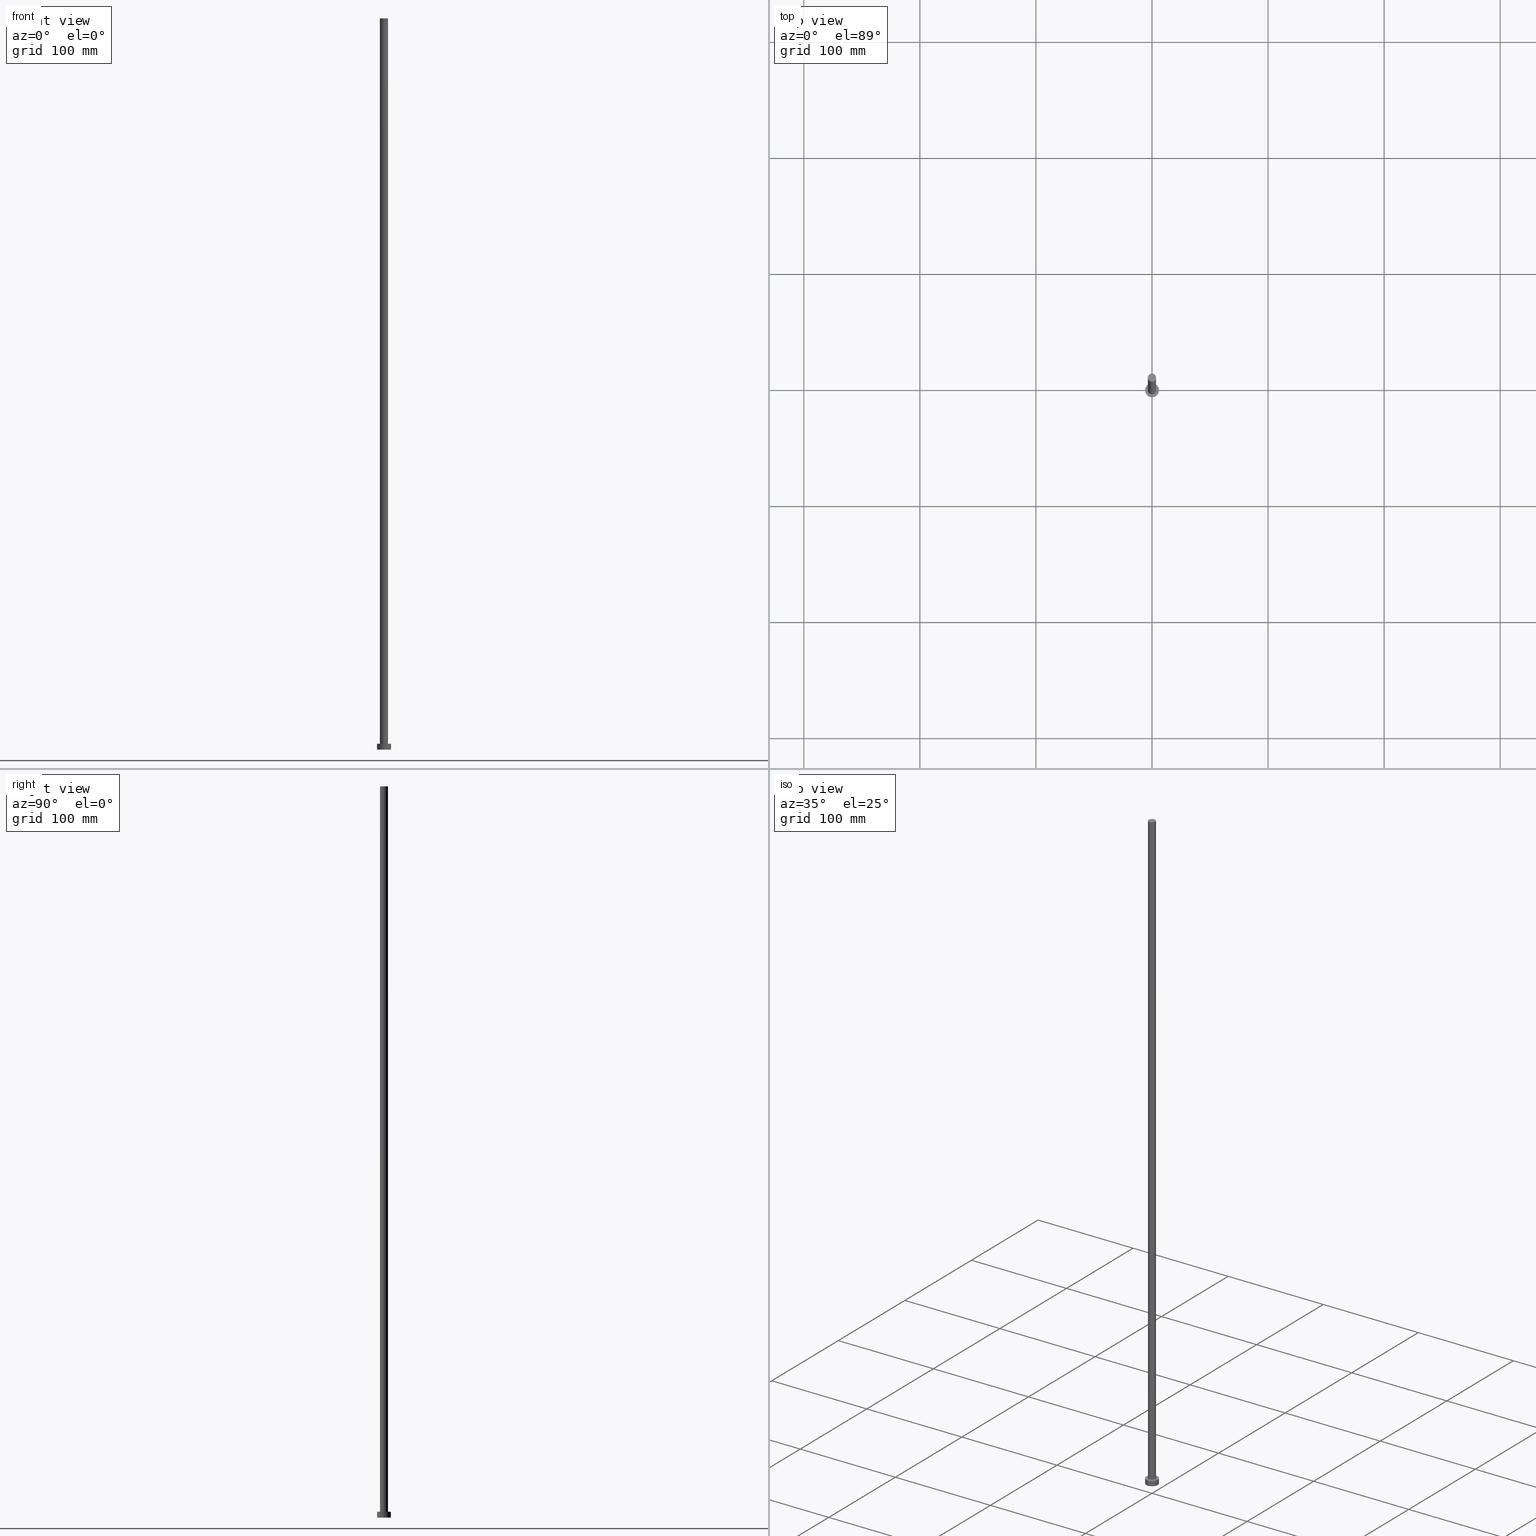
[diagram: canonical four-view strip — front | top / right | iso, engineering-drawing reading convention]
A machine part, canonical four-view strip (front | top / right | iso — engineering-drawing reading convention). The complete STEP part file that produces these views, byte-faithful:
ISO-10303-21;
HEADER;
FILE_DESCRIPTION (( 'STEP AP203' ),
    '1' );
FILE_NAME ('5583.STEP',
    '2023-02-13T14:48:15',
    ( '' ),
    ( '' ),
    'SwSTEP 2.0',
    'SolidWorks 2019',
    '' );
FILE_SCHEMA (( 'CONFIG_CONTROL_DESIGN' ));
ENDSEC;

DATA;
#1 = DIRECTION ( 'NONE',  ( -1.000000000000000000, 0.000000000000000000, 0.000000000000000000 ) ) ;
#2 = APPLICATION_CONTEXT ( 'configuration controlled 3d designs of mechanical parts and assemblies' ) ;
#3 = CARTESIAN_POINT ( 'NONE',  ( -3.500000000000000000, 0.000000000000000000, 5.000000000000000000 ) ) ;
#4 = EDGE_CURVE ( 'NONE', #90, #15, #38, .T. ) ;
#5 = DIRECTION ( 'NONE',  ( -0.000000000000000000, -0.000000000000000000, -1.000000000000000000 ) ) ;
#6 = COORDINATED_UNIVERSAL_TIME_OFFSET ( 1, 0, .AHEAD. ) ;
#7 = PERSON ( 'NEUR�EN�', 'NEUR�EN�', 'NEUR�EN�', ('NEUR�EN�'), ('NEUR�EN�'), ('NEUR�EN�') ) ;
#8 = CC_DESIGN_DATE_AND_TIME_ASSIGNMENT ( #25, #241, ( #174 ) ) ;
#9 = PERSON_AND_ORGANIZATION ( #7, #115 ) ;
#10 = ORIENTED_EDGE ( 'NONE', *, *, #224, .F. ) ;
#11 = PERSON_AND_ORGANIZATION ( #7, #115 ) ;
#12 = ORIENTED_EDGE ( 'NONE', *, *, #34, .T. ) ;
#13 = CC_DESIGN_APPROVAL ( #117, ( #27 ) ) ;
#14 = VERTEX_POINT ( 'NONE', #207 ) ;
#15 = VERTEX_POINT ( 'NONE', #95 ) ;
#16 = AXIS2_PLACEMENT_3D ( 'NONE', #211, #171, #1 ) ;
#17 = DIRECTION ( 'NONE',  ( 1.000000000000000000, 0.000000000000000000, 0.000000000000000000 ) ) ;
#18 = FACE_OUTER_BOUND ( 'NONE', #129, .T. ) ;
#19 = CARTESIAN_POINT ( 'NONE',  ( 6.000000000000000888, 7.347880794884120722E-16, 0.000000000000000000 ) ) ;
#20 = DIRECTION ( 'NONE',  ( 0.000000000000000000, 0.000000000000000000, 1.000000000000000000 ) ) ;
#21 = DIRECTION ( 'NONE',  ( -0.000000000000000000, -0.000000000000000000, -1.000000000000000000 ) ) ;
#22 = DIRECTION ( 'NONE',  ( 1.000000000000000000, 0.000000000000000000, 0.000000000000000000 ) ) ;
#23 = DIRECTION ( 'NONE',  ( 1.000000000000000000, 0.000000000000000000, 0.000000000000000000 ) ) ;
#24 = CIRCLE ( 'NONE', #133, 3.500000000000000000 ) ;
#25 = DATE_AND_TIME ( #164, #152 ) ;
#26 =( GEOMETRIC_REPRESENTATION_CONTEXT ( 3 ) GLOBAL_UNCERTAINTY_ASSIGNED_CONTEXT ( ( #161 ) ) GLOBAL_UNIT_ASSIGNED_CONTEXT ( ( #215, #114, #119 ) ) REPRESENTATION_CONTEXT ( 'NONE', 'WORKASPACE' ) );
#27 = PRODUCT_DEFINITION ( 'NEZN�M�', '', #121, #182 ) ;
#28 = PERSON_AND_ORGANIZATION_ROLE ( 'design_supplier' ) ;
#29 = ORIENTED_EDGE ( 'NONE', *, *, #91, .T. ) ;
#30 = DATE_AND_TIME ( #124, #55 ) ;
#31 = VERTEX_POINT ( 'NONE', #77 ) ;
#32 = AXIS2_PLACEMENT_3D ( 'NONE', #89, #71, #102 ) ;
#33 = APPLICATION_PROTOCOL_DEFINITION ( 'international standard', 'config_control_design', 1994, #2 ) ;
#34 = EDGE_CURVE ( 'NONE', #141, #88, #191, .T. ) ;
#35 = ORIENTED_EDGE ( 'NONE', *, *, #91, .F. ) ;
#36 = APPROVAL ( #87, 'NEUR�EN�' ) ;
#37 = DIRECTION ( 'NONE',  ( -1.000000000000000000, 0.000000000000000000, 0.000000000000000000 ) ) ;
#38 = CIRCLE ( 'NONE', #62, 6.000000000000000888 ) ;
#39 = ADVANCED_FACE ( 'NONE', ( #154 ), #192, .T. ) ;
#40 = DIRECTION ( 'NONE',  ( 0.000000000000000000, 0.000000000000000000, 1.000000000000000000 ) ) ;
#41 = AXIS2_PLACEMENT_3D ( 'NONE', #198, #138, #217 ) ;
#42 = PLANE ( 'NONE',  #41 ) ;
#43 = PLANE ( 'NONE',  #134 ) ;
#44 = FACE_OUTER_BOUND ( 'NONE', #123, .T. ) ;
#45 = AXIS2_PLACEMENT_3D ( 'NONE', #213, #160, #80 ) ;
#46 = CARTESIAN_POINT ( 'NONE',  ( 0.000000000000000000, 0.000000000000000000, 630.0000000000000000 ) ) ;
#47 = APPROVAL_ROLE ( '' ) ;
#48 = ORIENTED_EDGE ( 'NONE', *, *, #4, .F. ) ;
#49 = PERSON_AND_ORGANIZATION_ROLE ( 'creator' ) ;
#50 = ORIENTED_EDGE ( 'NONE', *, *, #108, .T. ) ;
#51 = PERSON_AND_ORGANIZATION ( #7, #115 ) ;
#52 = CALENDAR_DATE ( 2023, 13, 2 ) ;
#53 = VECTOR ( 'NONE', #21, 1000.000000000000000 ) ;
#54 = ORIENTED_EDGE ( 'NONE', *, *, #112, .T. ) ;
#55 = LOCAL_TIME ( 15, 48, 15.00000000000000000, #6 ) ;
#56 = PERSON_AND_ORGANIZATION_ROLE ( 'creator' ) ;
#57 = ORIENTED_EDGE ( 'NONE', *, *, #224, .T. ) ;
#58 = CC_DESIGN_PERSON_AND_ORGANIZATION_ASSIGNMENT ( #85, #49, ( #121 ) ) ;
#59 = AXIS2_PLACEMENT_3D ( 'NONE', #46, #158, #99 ) ;
#60 = DIRECTION ( 'NONE',  ( -0.000000000000000000, -0.000000000000000000, -1.000000000000000000 ) ) ;
#61 = DIRECTION ( 'NONE',  ( 0.000000000000000000, 0.000000000000000000, 1.000000000000000000 ) ) ;
#62 = AXIS2_PLACEMENT_3D ( 'NONE', #149, #109, #232 ) ;
#63 = PLANE ( 'NONE',  #59 ) ;
#64 = CARTESIAN_POINT ( 'NONE',  ( 6.000000000000000888, 7.347880794884120722E-16, 5.000000000000000000 ) ) ;
#65 = CARTESIAN_POINT ( 'NONE',  ( 0.000000000000000000, 0.000000000000000000, 630.0000000000000000 ) ) ;
#66 = DIRECTION ( 'NONE',  ( 1.000000000000000000, 0.000000000000000000, 0.000000000000000000 ) ) ;
#67 = CYLINDRICAL_SURFACE ( 'NONE', #218, 6.000000000000000888 ) ;
#68 = EDGE_LOOP ( 'NONE', ( #143, #48 ) ) ;
#69 = DATE_TIME_ROLE ( 'creation_date' ) ;
#70 = ORIENTED_EDGE ( 'NONE', *, *, #4, .T. ) ;
#71 = DIRECTION ( 'NONE',  ( 0.000000000000000000, 0.000000000000000000, 1.000000000000000000 ) ) ;
#72 = CALENDAR_DATE ( 2023, 13, 2 ) ;
#73 = ORIENTED_EDGE ( 'NONE', *, *, #112, .F. ) ;
#74 = ORIENTED_EDGE ( 'NONE', *, *, #126, .T. ) ;
#75 = CIRCLE ( 'NONE', #83, 6.000000000000000888 ) ;
#76 = CIRCLE ( 'NONE', #212, 6.000000000000000888 ) ;
#77 = CARTESIAN_POINT ( 'NONE',  ( 3.500000000000000000, 4.286263797015736595E-16, 630.0000000000000000 ) ) ;
#78 = FACE_OUTER_BOUND ( 'NONE', #208, .T. ) ;
#79 = DIRECTION ( 'NONE',  ( 1.000000000000000000, 0.000000000000000000, 0.000000000000000000 ) ) ;
#80 = DIRECTION ( 'NONE',  ( -1.000000000000000000, 0.000000000000000000, 0.000000000000000000 ) ) ;
#81 = DIRECTION ( 'NONE',  ( 0.000000000000000000, 0.000000000000000000, 1.000000000000000000 ) ) ;
#82 = EDGE_CURVE ( 'NONE', #166, #141, #230, .T. ) ;
#83 = AXIS2_PLACEMENT_3D ( 'NONE', #220, #199, #23 ) ;
#84 = PERSON_AND_ORGANIZATION_ROLE ( 'classification_officer' ) ;
#85 = PERSON_AND_ORGANIZATION ( #7, #115 ) ;
#86 = EDGE_LOOP ( 'NONE', ( #10, #251, #70, #168 ) ) ;
#87 = APPROVAL_STATUS ( 'not_yet_approved' ) ;
#88 = VERTEX_POINT ( 'NONE', #233 ) ;
#89 = CARTESIAN_POINT ( 'NONE',  ( 0.000000000000000000, 0.000000000000000000, 0.000000000000000000 ) ) ;
#90 = VERTEX_POINT ( 'NONE', #19 ) ;
#91 = EDGE_CURVE ( 'NONE', #31, #166, #24, .T. ) ;
#92 = VECTOR ( 'NONE', #60, 1000.000000000000000 ) ;
#93 = ORIENTED_EDGE ( 'NONE', *, *, #34, .F. ) ;
#94 = CC_DESIGN_APPROVAL ( #159, ( #174 ) ) ;
#95 = CARTESIAN_POINT ( 'NONE',  ( -6.000000000000000888, 0.000000000000000000, 0.000000000000000000 ) ) ;
#96 = LINE ( 'NONE', #64, #252 ) ;
#97 = CARTESIAN_POINT ( 'NONE',  ( 0.000000000000000000, 0.000000000000000000, 5.000000000000000000 ) ) ;
#98 = DIRECTION ( 'NONE',  ( 1.000000000000000000, 0.000000000000000000, 0.000000000000000000 ) ) ;
#99 = DIRECTION ( 'NONE',  ( 1.000000000000000000, 0.000000000000000000, -0.000000000000000000 ) ) ;
#100 = CC_DESIGN_PERSON_AND_ORGANIZATION_ASSIGNMENT ( #11, #56, ( #27 ) ) ;
#101 = COORDINATED_UNIVERSAL_TIME_OFFSET ( 1, 0, .AHEAD. ) ;
#102 = DIRECTION ( 'NONE',  ( 1.000000000000000000, 0.000000000000000000, 0.000000000000000000 ) ) ;
#103 = ADVANCED_FACE ( 'NONE', ( #18 ), #253, .T. ) ;
#104 = APPROVAL_DATE_TIME ( #186, #117 ) ;
#105 = ORIENTED_EDGE ( 'NONE', *, *, #209, .T. ) ;
#106 = SECURITY_CLASSIFICATION_LEVEL ( 'unclassified' ) ;
#107 = COORDINATED_UNIVERSAL_TIME_OFFSET ( 1, 0, .AHEAD. ) ;
#108 = EDGE_CURVE ( 'NONE', #226, #15, #239, .T. ) ;
#109 = DIRECTION ( 'NONE',  ( 0.000000000000000000, 0.000000000000000000, 1.000000000000000000 ) ) ;
#110 = CARTESIAN_POINT ( 'NONE',  ( 0.000000000000000000, 0.000000000000000000, 5.000000000000000000 ) ) ;
#111 = VECTOR ( 'NONE', #254, 1000.000000000000000 ) ;
#112 = EDGE_CURVE ( 'NONE', #88, #141, #120, .T. ) ;
#113 = DIRECTION ( 'NONE',  ( 0.000000000000000000, 0.000000000000000000, 1.000000000000000000 ) ) ;
#114 =( NAMED_UNIT ( * ) PLANE_ANGLE_UNIT ( ) SI_UNIT ( $, .RADIAN. ) );
#115 = ORGANIZATION ( 'NEUR�EN�', 'NEUR�EN�', '' ) ;
#116 = CARTESIAN_POINT ( 'NONE',  ( 3.500000000000000000, 4.286263797015736595E-16, 630.0000000000000000 ) ) ;
#117 = APPROVAL ( #144, 'NEUR�EN�' ) ;
#118 = CARTESIAN_POINT ( 'NONE',  ( 0.000000000000000000, 0.000000000000000000, 0.000000000000000000 ) ) ;
#119 =( NAMED_UNIT ( * ) SI_UNIT ( $, .STERADIAN. ) SOLID_ANGLE_UNIT ( ) );
#120 = CIRCLE ( 'NONE', #216, 3.500000000000000000 ) ;
#121 = PRODUCT_DEFINITION_FORMATION_WITH_SPECIFIED_SOURCE ( 'LIBOVOLN�', '', #190, .NOT_KNOWN. ) ;
#122 = EDGE_LOOP ( 'NONE', ( #74, #29 ) ) ;
#123 = EDGE_LOOP ( 'NONE', ( #35, #203, #54, #229 ) ) ;
#124 = CALENDAR_DATE ( 2023, 13, 2 ) ;
#125 = AXIS2_PLACEMENT_3D ( 'NONE', #110, #61, #17 ) ;
#126 = EDGE_CURVE ( 'NONE', #166, #31, #155, .T. ) ;
#127 = ORIENTED_EDGE ( 'NONE', *, *, #235, .F. ) ;
#128 = PERSON_AND_ORGANIZATION ( #7, #115 ) ;
#129 = EDGE_LOOP ( 'NONE', ( #246, #223, #189, #12 ) ) ;
#130 = APPROVAL_PERSON_ORGANIZATION ( #227, #117, #222 ) ;
#131 = ADVANCED_FACE ( 'NONE', ( #180, #78 ), #42, .T. ) ;
#132 = DIRECTION ( 'NONE',  ( -0.000000000000000000, -0.000000000000000000, -1.000000000000000000 ) ) ;
#133 = AXIS2_PLACEMENT_3D ( 'NONE', #210, #40, #176 ) ;
#134 = AXIS2_PLACEMENT_3D ( 'NONE', #118, #113, #236 ) ;
#135 = CARTESIAN_POINT ( 'NONE',  ( 0.000000000000000000, 0.000000000000000000, 5.000000000000000000 ) ) ;
#136 = DIRECTION ( 'NONE',  ( -0.000000000000000000, -0.000000000000000000, -1.000000000000000000 ) ) ;
#137 = CC_DESIGN_APPROVAL ( #36, ( #121 ) ) ;
#138 = DIRECTION ( 'NONE',  ( 0.000000000000000000, 0.000000000000000000, 1.000000000000000000 ) ) ;
#139 = APPROVAL_STATUS ( 'not_yet_approved' ) ;
#140 = APPROVAL_PERSON_ORGANIZATION ( #51, #159, #47 ) ;
#141 = VERTEX_POINT ( 'NONE', #3 ) ;
#142 = PERSON_AND_ORGANIZATION ( #7, #115 ) ;
#143 = ORIENTED_EDGE ( 'NONE', *, *, #150, .F. ) ;
#144 = APPROVAL_STATUS ( 'not_yet_approved' ) ;
#145 = ADVANCED_FACE ( 'NONE', ( #44 ), #178, .T. ) ;
#146 = APPLICATION_PROTOCOL_DEFINITION ( 'international standard', 'config_control_design', 1994, #221 ) ;
#147 = ORIENTED_EDGE ( 'NONE', *, *, #209, .F. ) ;
#148 = ORIENTED_EDGE ( 'NONE', *, *, #150, .T. ) ;
#149 = CARTESIAN_POINT ( 'NONE',  ( 0.000000000000000000, 0.000000000000000000, 0.000000000000000000 ) ) ;
#150 = EDGE_CURVE ( 'NONE', #15, #90, #75, .T. ) ;
#151 = CARTESIAN_POINT ( 'NONE',  ( 0.000000000000000000, 0.000000000000000000, 5.000000000000000000 ) ) ;
#152 = LOCAL_TIME ( 15, 48, 15.00000000000000000, #225 ) ;
#153 = MANIFOLD_SOLID_BREP ( 'P�idat vysunut�m3', #183 ) ;
#154 = FACE_OUTER_BOUND ( 'NONE', #86, .T. ) ;
#155 = CIRCLE ( 'NONE', #162, 3.500000000000000000 ) ;
#156 = LINE ( 'NONE', #116, #111 ) ;
#157 = CARTESIAN_POINT ( 'NONE',  ( 0.000000000000000000, 0.000000000000000000, 5.000000000000000000 ) ) ;
#158 = DIRECTION ( 'NONE',  ( 0.000000000000000000, 0.000000000000000000, 1.000000000000000000 ) ) ;
#159 = APPROVAL ( #139, 'NEUR�EN�' ) ;
#160 = DIRECTION ( 'NONE',  ( -0.000000000000000000, -0.000000000000000000, -1.000000000000000000 ) ) ;
#161 = UNCERTAINTY_MEASURE_WITH_UNIT (LENGTH_MEASURE( 1.000000000000000082E-05 ), #215, 'distance_accuracy_value', 'NONE');
#162 = AXIS2_PLACEMENT_3D ( 'NONE', #65, #179, #66 ) ;
#163 = APPROVAL_PERSON_ORGANIZATION ( #9, #36, #167 ) ;
#164 = CALENDAR_DATE ( 2023, 13, 2 ) ;
#165 = CALENDAR_DATE ( 2023, 13, 2 ) ;
#166 = VERTEX_POINT ( 'NONE', #237 ) ;
#167 = APPROVAL_ROLE ( '' ) ;
#168 = ORIENTED_EDGE ( 'NONE', *, *, #108, .F. ) ;
#169 = ADVANCED_FACE ( 'NONE', ( #196 ), #67, .T. ) ;
#170 = PERSON_AND_ORGANIZATION ( #7, #115 ) ;
#171 = DIRECTION ( 'NONE',  ( -0.000000000000000000, -0.000000000000000000, -1.000000000000000000 ) ) ;
#172 = LOCAL_TIME ( 15, 48, 15.00000000000000000, #101 ) ;
#173 = EDGE_CURVE ( 'NONE', #31, #88, #156, .T. ) ;
#174 = SECURITY_CLASSIFICATION ( '', '', #106 ) ;
#175 = ADVANCED_FACE ( 'NONE', ( #219 ), #63, .T. ) ;
#176 = DIRECTION ( 'NONE',  ( 1.000000000000000000, 0.000000000000000000, 0.000000000000000000 ) ) ;
#177 = CARTESIAN_POINT ( 'NONE',  ( 0.000000000000000000, 0.000000000000000000, 5.000000000000000000 ) ) ;
#178 = CYLINDRICAL_SURFACE ( 'NONE', #45, 3.500000000000000000 ) ;
#179 = DIRECTION ( 'NONE',  ( 0.000000000000000000, 0.000000000000000000, 1.000000000000000000 ) ) ;
#180 = FACE_BOUND ( 'NONE', #228, .T. ) ;
#181 = FACE_OUTER_BOUND ( 'NONE', #68, .T. ) ;
#182 = DESIGN_CONTEXT ( 'detailed design', #2, 'design' ) ;
#183 = CLOSED_SHELL ( 'NONE', ( #145, #39, #169, #131, #193, #103, #175 ) ) ;
#184 = CC_DESIGN_SECURITY_CLASSIFICATION ( #174, ( #121 ) ) ;
#185 = PERSON_AND_ORGANIZATION_ROLE ( 'design_owner' ) ;
#186 = DATE_AND_TIME ( #72, #172 ) ;
#187 = APPROVAL_DATE_TIME ( #242, #159 ) ;
#188 = AXIS2_PLACEMENT_3D ( 'NONE', #135, #20, #22 ) ;
#189 = ORIENTED_EDGE ( 'NONE', *, *, #82, .T. ) ;
#190 = PRODUCT ( '5583', '5583', '', ( #204 ) ) ;
#191 = CIRCLE ( 'NONE', #125, 3.500000000000000000 ) ;
#192 = CYLINDRICAL_SURFACE ( 'NONE', #234, 6.000000000000000888 ) ;
#193 = ADVANCED_FACE ( 'NONE', ( #181 ), #43, .F. ) ;
#194 = CARTESIAN_POINT ( 'NONE',  ( -3.500000000000000000, 0.000000000000000000, 630.0000000000000000 ) ) ;
#195 = CARTESIAN_POINT ( 'NONE',  ( -6.000000000000000888, 0.000000000000000000, 5.000000000000000000 ) ) ;
#196 = FACE_OUTER_BOUND ( 'NONE', #248, .T. ) ;
#197 = LOCAL_TIME ( 15, 48, 15.00000000000000000, #245 ) ;
#198 = CARTESIAN_POINT ( 'NONE',  ( 0.000000000000000000, 0.000000000000000000, 5.000000000000000000 ) ) ;
#199 = DIRECTION ( 'NONE',  ( 0.000000000000000000, 0.000000000000000000, 1.000000000000000000 ) ) ;
#200 = CC_DESIGN_PERSON_AND_ORGANIZATION_ASSIGNMENT ( #128, #84, ( #174 ) ) ;
#201 = CARTESIAN_POINT ( 'NONE',  ( -6.000000000000000888, 0.000000000000000000, 5.000000000000000000 ) ) ;
#202 = DATE_AND_TIME ( #52, #197 ) ;
#203 = ORIENTED_EDGE ( 'NONE', *, *, #173, .T. ) ;
#204 = MECHANICAL_CONTEXT ( 'NONE', #221, 'mechanical' ) ;
#205 = LOCAL_TIME ( 15, 48, 15.00000000000000000, #107 ) ;
#206 = PRODUCT_DEFINITION_SHAPE ( 'NONE', 'NONE',  #27 ) ;
#207 = CARTESIAN_POINT ( 'NONE',  ( 6.000000000000000888, 7.347880794884120722E-16, 5.000000000000000000 ) ) ;
#208 = EDGE_LOOP ( 'NONE', ( #105, #57 ) ) ;
#209 = EDGE_CURVE ( 'NONE', #226, #14, #231, .T. ) ;
#210 = CARTESIAN_POINT ( 'NONE',  ( 0.000000000000000000, 0.000000000000000000, 630.0000000000000000 ) ) ;
#211 = CARTESIAN_POINT ( 'NONE',  ( 0.000000000000000000, 0.000000000000000000, 630.0000000000000000 ) ) ;
#212 = AXIS2_PLACEMENT_3D ( 'NONE', #97, #255, #98 ) ;
#213 = CARTESIAN_POINT ( 'NONE',  ( 0.000000000000000000, 0.000000000000000000, 630.0000000000000000 ) ) ;
#214 = PRODUCT_RELATED_PRODUCT_CATEGORY ( 'detail', '', ( #190 ) ) ;
#215 =( LENGTH_UNIT ( ) NAMED_UNIT ( * ) SI_UNIT ( .MILLI., .METRE. ) );
#216 = AXIS2_PLACEMENT_3D ( 'NONE', #157, #81, #79 ) ;
#217 = DIRECTION ( 'NONE',  ( 1.000000000000000000, 0.000000000000000000, -0.000000000000000000 ) ) ;
#218 = AXIS2_PLACEMENT_3D ( 'NONE', #177, #136, #238 ) ;
#219 = FACE_OUTER_BOUND ( 'NONE', #122, .T. ) ;
#220 = CARTESIAN_POINT ( 'NONE',  ( 0.000000000000000000, 0.000000000000000000, 0.000000000000000000 ) ) ;
#221 = APPLICATION_CONTEXT ( 'configuration controlled 3d designs of mechanical parts and assemblies' ) ;
#222 = APPROVAL_ROLE ( '' ) ;
#223 = ORIENTED_EDGE ( 'NONE', *, *, #126, .F. ) ;
#224 = EDGE_CURVE ( 'NONE', #14, #226, #76, .T. ) ;
#225 = COORDINATED_UNIVERSAL_TIME_OFFSET ( 1, 0, .AHEAD. ) ;
#226 = VERTEX_POINT ( 'NONE', #201 ) ;
#227 = PERSON_AND_ORGANIZATION ( #7, #115 ) ;
#228 = EDGE_LOOP ( 'NONE', ( #93, #73 ) ) ;
#229 = ORIENTED_EDGE ( 'NONE', *, *, #82, .F. ) ;
#230 = LINE ( 'NONE', #194, #92 ) ;
#231 = CIRCLE ( 'NONE', #188, 6.000000000000000888 ) ;
#232 = DIRECTION ( 'NONE',  ( 1.000000000000000000, 0.000000000000000000, 0.000000000000000000 ) ) ;
#233 = CARTESIAN_POINT ( 'NONE',  ( 3.500000000000000000, 4.286263797015736595E-16, 5.000000000000000000 ) ) ;
#234 = AXIS2_PLACEMENT_3D ( 'NONE', #151, #132, #37 ) ;
#235 = EDGE_CURVE ( 'NONE', #14, #90, #96, .T. ) ;
#236 = DIRECTION ( 'NONE',  ( 1.000000000000000000, 0.000000000000000000, -0.000000000000000000 ) ) ;
#237 = CARTESIAN_POINT ( 'NONE',  ( -3.500000000000000000, 0.000000000000000000, 630.0000000000000000 ) ) ;
#238 = DIRECTION ( 'NONE',  ( -1.000000000000000000, 0.000000000000000000, 0.000000000000000000 ) ) ;
#239 = LINE ( 'NONE', #195, #53 ) ;
#240 = CC_DESIGN_PERSON_AND_ORGANIZATION_ASSIGNMENT ( #142, #28, ( #121 ) ) ;
#241 = DATE_TIME_ROLE ( 'classification_date' ) ;
#242 = DATE_AND_TIME ( #165, #205 ) ;
#243 = ADVANCED_BREP_SHAPE_REPRESENTATION ( '5583', ( #153, #32 ), #26 ) ;
#244 = CC_DESIGN_PERSON_AND_ORGANIZATION_ASSIGNMENT ( #170, #185, ( #190 ) ) ;
#245 = COORDINATED_UNIVERSAL_TIME_OFFSET ( 1, 0, .AHEAD. ) ;
#246 = ORIENTED_EDGE ( 'NONE', *, *, #173, .F. ) ;
#247 = SHAPE_DEFINITION_REPRESENTATION ( #206, #243 ) ;
#248 = EDGE_LOOP ( 'NONE', ( #127, #147, #50, #148 ) ) ;
#249 = CC_DESIGN_DATE_AND_TIME_ASSIGNMENT ( #30, #69, ( #27 ) ) ;
#250 = APPROVAL_DATE_TIME ( #202, #36 ) ;
#251 = ORIENTED_EDGE ( 'NONE', *, *, #235, .T. ) ;
#252 = VECTOR ( 'NONE', #5, 1000.000000000000000 ) ;
#253 = CYLINDRICAL_SURFACE ( 'NONE', #16, 3.500000000000000000 ) ;
#254 = DIRECTION ( 'NONE',  ( -0.000000000000000000, -0.000000000000000000, -1.000000000000000000 ) ) ;
#255 = DIRECTION ( 'NONE',  ( 0.000000000000000000, 0.000000000000000000, 1.000000000000000000 ) ) ;
ENDSEC;
END-ISO-10303-21;
